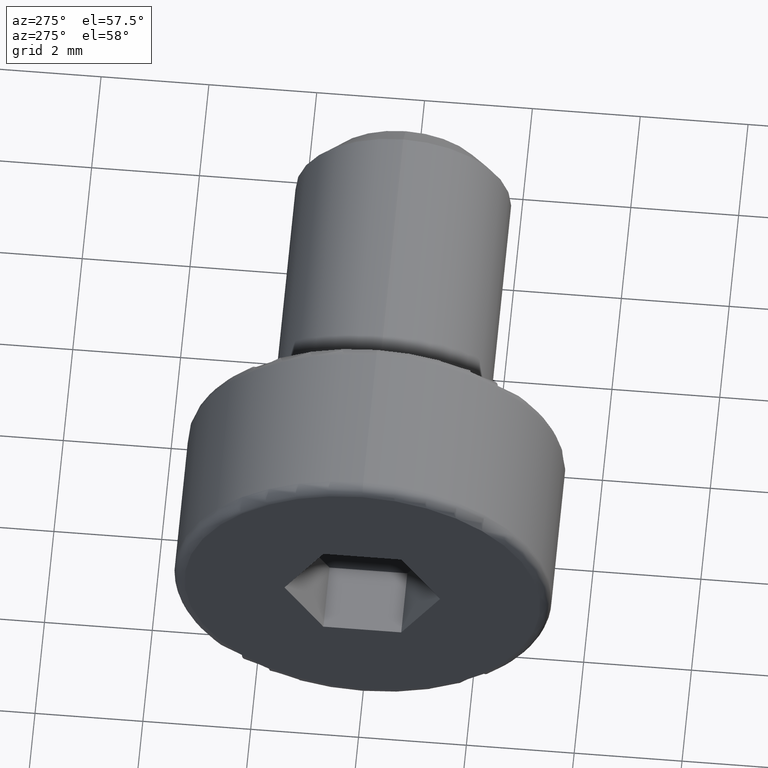
[diagram: clean part render]
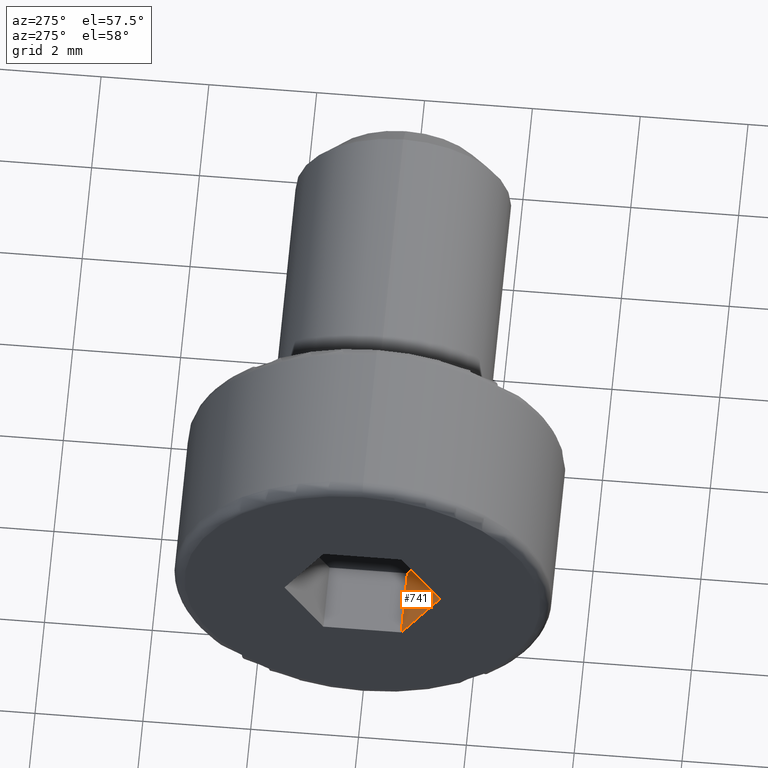
[diagram: same view with one face highlighted and labeled with its STEP entity id]
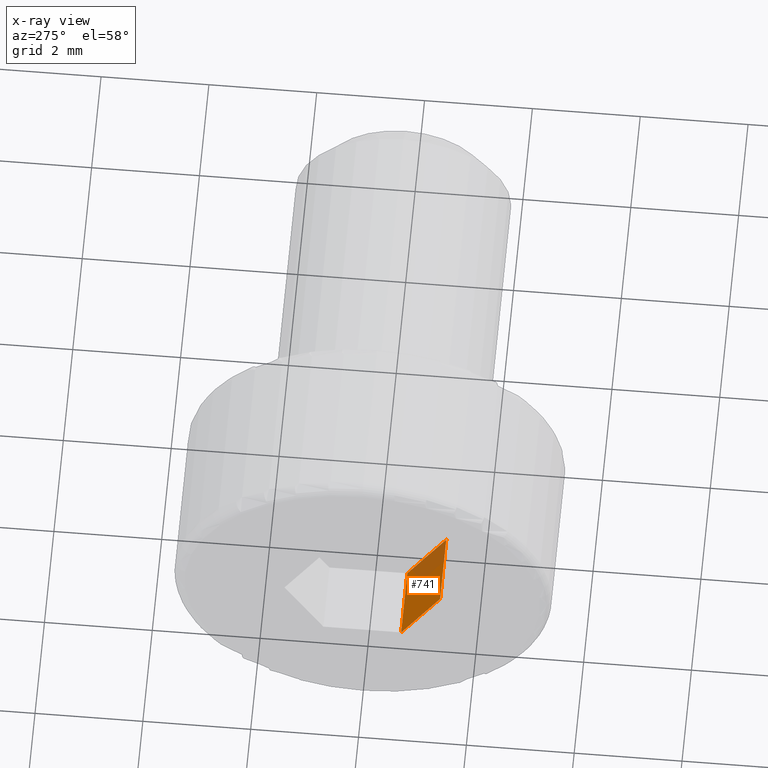
[diagram: x-ray of the same camera — body ghosted, the highlighted face saturated]
A machine part, auxiliary view. The second image highlights one B-rep face of the part: STEP entity #741.
The next image is the same camera in x-ray: the body ghosted, the highlighted face saturated — about 27% of this face is hidden behind the body in this view.
In plain terms, the highlighted planar face has unit normal (0, -0.866, -0.5).
Its self-contained STEP definition (entity closure, byte-faithful):
#6 = LINE ( 'NONE', #696, #192 ) ;
#37 = EDGE_CURVE ( 'NONE', #389, #63, #459, .T. ) ;
#47 = CARTESIAN_POINT ( 'NONE',  ( -3.200000000000000200, -0.7216878364870911200, -1.250000000000022200 ) ) ;
#63 = VERTEX_POINT ( 'NONE', #47 ) ;
#70 = VECTOR ( 'NONE', #516, 1000.000000000000100 ) ;
#86 = CARTESIAN_POINT ( 'NONE',  ( -1.900000000000000100, -1.443375672974113400, 2.362564658902374300E-014 ) ) ;
#97 = ORIENTED_EDGE ( 'NONE', *, *, #255, .F. ) ;
#117 = DIRECTION ( 'NONE',  ( -1.000000000000000000, -0.0000000000000000000, -0.0000000000000000000 ) ) ;
#142 = CARTESIAN_POINT ( 'NONE',  ( -1.900000000000000100, -1.443375672974113400, 2.362564658902374300E-014 ) ) ;
#147 = ORIENTED_EDGE ( 'NONE', *, *, #456, .T. ) ;
#154 = CARTESIAN_POINT ( 'NONE',  ( -1.900000000000000100, -0.7216878364870908900, -1.250000000000022200 ) ) ;
#173 = EDGE_CURVE ( 'NONE', #556, #362, #6, .T. ) ;
#189 = ORIENTED_EDGE ( 'NONE', *, *, #173, .F. ) ;
#192 = VECTOR ( 'NONE', #117, 1000.000000000000000 ) ;
#196 = DIRECTION ( 'NONE',  ( -0.0000000000000000000, -0.4999999999999812400, 0.8660254037844493700 ) ) ;
#239 = LINE ( 'NONE', #703, #70 ) ;
#255 = EDGE_CURVE ( 'NONE', #389, #556, #385, .T. ) ;
#292 = VECTOR ( 'NONE', #733, 1000.000000000000000 ) ;
#353 = CARTESIAN_POINT ( 'NONE',  ( -1.900000000000000100, -1.443375672974113400, 2.362564658902374300E-014 ) ) ;
#362 = VERTEX_POINT ( 'NONE', #591 ) ;
#385 = LINE ( 'NONE', #142, #717 ) ;
#389 = VERTEX_POINT ( 'NONE', #154 ) ;
#391 = PLANE ( 'NONE',  #400 ) ;
#400 = AXIS2_PLACEMENT_3D ( 'NONE', #86, #445, #765 ) ;
#422 = CARTESIAN_POINT ( 'NONE',  ( -1.900000000000000100, -0.7216878364870908900, -1.250000000000022200 ) ) ;
#445 = DIRECTION ( 'NONE',  ( 0.0000000000000000000, -0.8660254037844494800, -0.4999999999999813500 ) ) ;
#456 = EDGE_CURVE ( 'NONE', #63, #362, #239, .T. ) ;
#459 = LINE ( 'NONE', #422, #292 ) ;
#514 = ORIENTED_EDGE ( 'NONE', *, *, #37, .T. ) ;
#516 = DIRECTION ( 'NONE',  ( -0.0000000000000000000, -0.4999999999999812400, 0.8660254037844493700 ) ) ;
#556 = VERTEX_POINT ( 'NONE', #353 ) ;
#591 = CARTESIAN_POINT ( 'NONE',  ( -3.200000000000000200, -1.443375672974113400, 2.362564658902374300E-014 ) ) ;
#661 = FACE_OUTER_BOUND ( 'NONE', #795, .T. ) ;
#696 = CARTESIAN_POINT ( 'NONE',  ( -1.900000000000000100, -1.443375672974113400, 2.362564658902374300E-014 ) ) ;
#703 = CARTESIAN_POINT ( 'NONE',  ( -3.200000000000000200, -1.443375672974113400, 2.362564658902374300E-014 ) ) ;
#717 = VECTOR ( 'NONE', #196, 1000.000000000000100 ) ;
#733 = DIRECTION ( 'NONE',  ( -1.000000000000000000, -0.0000000000000000000, -0.0000000000000000000 ) ) ;
#741 = ADVANCED_FACE ( 'NONE', ( #661 ), #391, .F. ) ;
#765 = DIRECTION ( 'NONE',  ( 0.0000000000000000000, 0.4999999999999812900, -0.8660254037844493700 ) ) ;
#795 = EDGE_LOOP ( 'NONE', ( #147, #189, #97, #514 ) ) ;